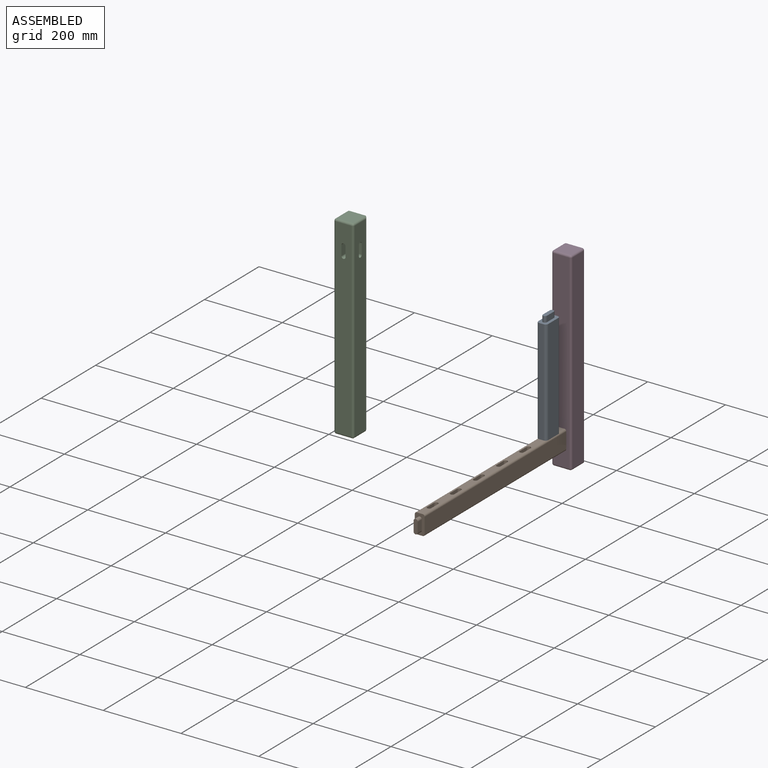
[diagram: assembled view]
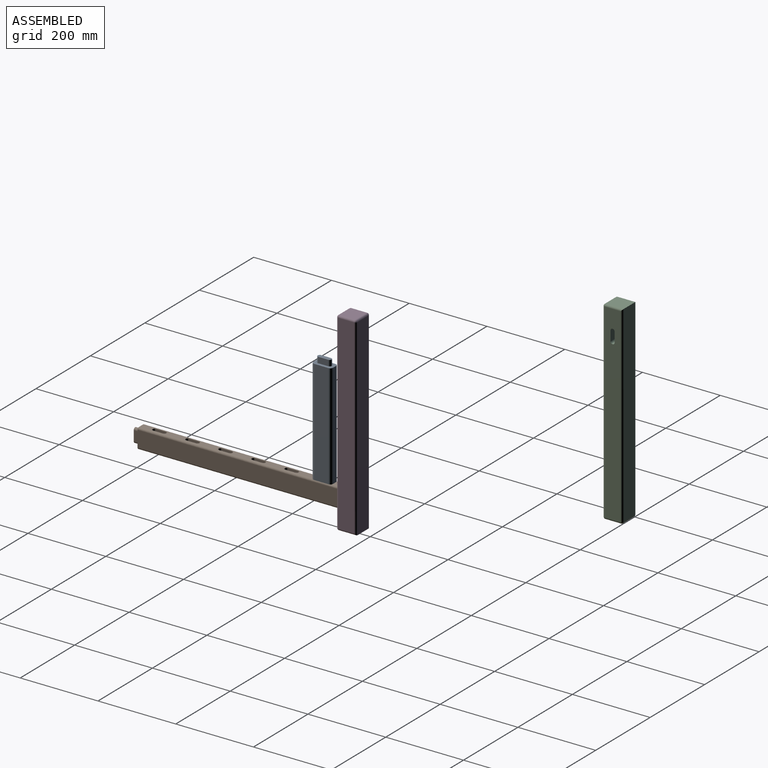
[diagram: assembled view, second angle]
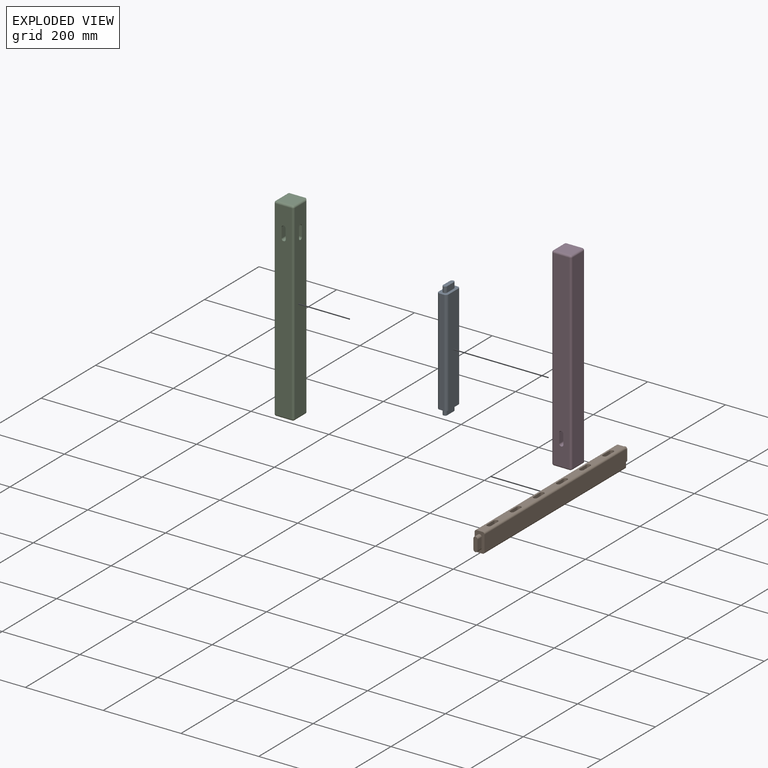
[diagram: exploded view]
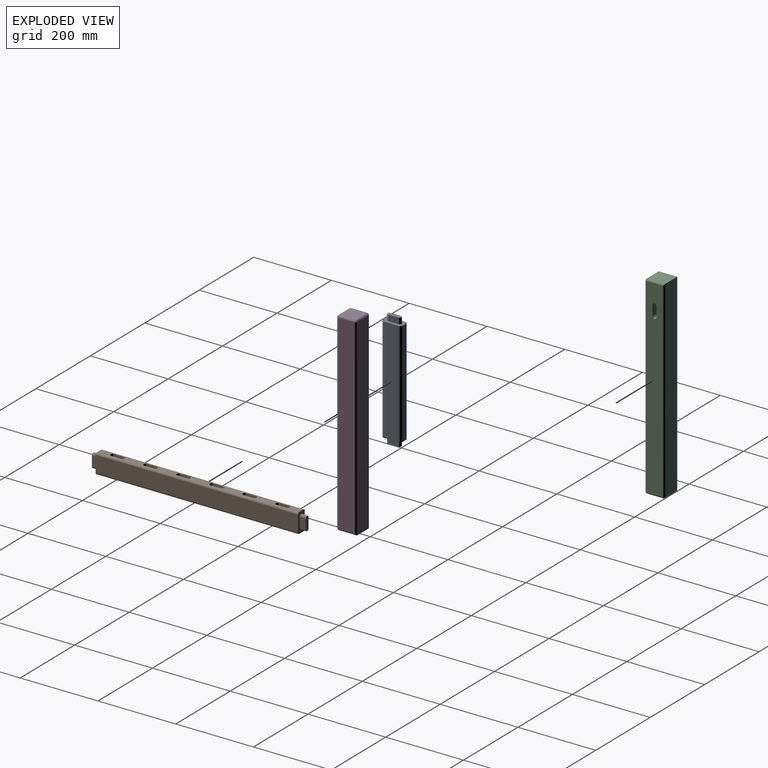
[diagram: exploded view, second angle]
ASSEMBLY  parts=4 mates=6
PART A: 20 faces, bbox 50.8x25.4x300 mm
  f0: plane 270x11.4mm, normal (-1,0,0), area 3078mm2, adj f4,f7,f12,f18
  f1: plane 270x36.8mm, normal (0,-1,0), area 9936mm2, adj f4,f5,f12,f18
  f2: plane 270x11.4mm, normal (1,0,0), area 3078mm2, adj f5,f6,f12,f18
  f3: plane 270x36.8mm, normal (0,1,0), area 9936mm2, adj f6,f7,f12,f18
  f4: cylinder r=7mm len=270mm, axis (0,0,-1), area 2968.8mm2, adj f0,f1,f12,f18
  f5: cylinder r=7mm len=270mm, axis (0,0,-1), area 2968.8mm2, adj f1,f2,f12,f18
  f6: cylinder r=7mm len=270mm, axis (0,0,-1), area 2968.8mm2, adj f2,f3,f12,f18
  f7: cylinder r=7mm len=270mm, axis (0,0,-1), area 2968.8mm2, adj f0,f3,f12,f18
  f8: cylinder r=5.3mm len=15mm, axis (0,0,1), area 249.8mm2, adj f9,f11,f12,f13
  f9: plane 25.4x15mm, normal (0,1,0), area 381mm2, adj f8,f10,f12,f13
  f10: cylinder r=5.3mm len=15mm, axis (0,0,1), area 249.8mm2, adj f9,f11,f12,f13
  f11: plane 25.4x15mm, normal (0,-1,0), area 381mm2, adj f8,f10,f12,f13
  f12: plane 50.8x25.4mm, normal (0,0,1), area 890.8mm2, adj f0,f1,f2,f3,f4,f5,f6,f7
  f13: plane 36x10.6mm, normal (0,0,1), area 357.5mm2, adj f8,f9,f10,f11
  f14: cylinder r=5.3mm len=15mm, axis (0,0,-1), area 249.8mm2, adj f15,f17,f18,f19
  f15: plane 25.4x15mm, normal (0,1,0), area 381mm2, adj f14,f16,f18,f19
  f16: cylinder r=5.3mm len=15mm, axis (0,0,-1), area 249.8mm2, adj f15,f17,f18,f19
  f17: plane 25.4x15mm, normal (0,-1,0), area 381mm2, adj f14,f16,f18,f19
  f18: plane 50.8x25.4mm, normal (0,0,-1), area 890.8mm2, adj f0,f1,f2,f3,f4,f5,f6,f7
  f19: plane 36x10.6mm, normal (0,0,-1), area 357.5mm2, adj f14,f15,f16,f17
PART B: 50 faces, bbox 50.8x25.4x550 mm
  f0: plane 520x15.4mm, normal (-1,0,0), area 5863.1mm2, adj f4,f7,f8,f9,f10,f11,f13,f14
  f1: plane 520x40.8mm, normal (0,-1,0), area 21216mm2, adj f4,f5,f42,f48
  f2: plane 520x15.4mm, normal (1,0,0), area 8008mm2, adj f5,f6,f42,f48
  f3: plane 520x40.8mm, normal (0,1,0), area 21216mm2, adj f6,f7,f42,f48
  f4: cylinder r=5mm len=520mm, axis (0,0,-1), area 4084.1mm2, adj f0,f1,f42,f48
  f5: cylinder r=5mm len=520mm, axis (0,0,-1), area 4084.1mm2, adj f1,f2,f42,f48
  f6: cylinder r=5mm len=520mm, axis (0,0,-1), area 4084.1mm2, adj f2,f3,f42,f48
  f7: cylinder r=5mm len=520mm, axis (0,0,-1), area 4084.1mm2, adj f0,f3,f42,f48
  f8: cylinder r=5.3mm len=15mm, axis (-1,0,0), area 249.8mm2, adj f0,f9,f11,f12
  f9: plane 25.4x15mm, normal (0,-1,0), area 381mm2, adj f0,f8,f10,f12
  f10: cylinder r=5.3mm len=15mm, axis (-1,0,0), area 249.8mm2, adj f0,f9,f11,f12
  f11: plane 25.4x15mm, normal (0,1,0), area 381mm2, adj f0,f8,f10,f12
  f12: plane 36x10.6mm, normal (-1,0,0), area 357.5mm2, adj f8,f9,f10,f11
  f13: cylinder r=5.3mm len=15mm, axis (-1,0,0), area 249.8mm2, adj f0,f14,f16,f17
  f14: plane 25.4x15mm, normal (0,-1,0), area 381mm2, adj f0,f13,f15,f17
  f15: cylinder r=5.3mm len=15mm, axis (-1,0,0), area 249.8mm2, adj f0,f14,f16,f17
  f16: plane 25.4x15mm, normal (0,1,0), area 381mm2, adj f0,f13,f15,f17
  f17: plane 36x10.6mm, normal (-1,0,0), area 357.5mm2, adj f13,f14,f15,f16
  f18: cylinder r=5.3mm len=15mm, axis (-1,0,0), area 249.8mm2, adj f0,f19,f21,f22
  f19: plane 25.4x15mm, normal (0,-1,0), area 381mm2, adj f0,f18,f20,f22
  f20: cylinder r=5.3mm len=15mm, axis (-1,0,0), area 249.8mm2, adj f0,f19,f21,f22
  f21: plane 25.4x15mm, normal (0,1,0), area 381mm2, adj f0,f18,f20,f22
  f22: plane 36x10.6mm, normal (-1,0,0), area 357.5mm2, adj f18,f19,f20,f21
  f23: cylinder r=5.3mm len=15mm, axis (-1,0,0), area 249.8mm2, adj f0,f24,f26,f27
  f24: plane 25.4x15mm, normal (0,-1,0), area 381mm2, adj f0,f23,f25,f27
  f25: cylinder r=5.3mm len=15mm, axis (-1,0,0), area 249.8mm2, adj f0,f24,f26,f27
  f26: plane 25.4x15mm, normal (0,1,0), area 381mm2, adj f0,f23,f25,f27
  f27: plane 36x10.6mm, normal (-1,0,0), area 357.5mm2, adj f23,f24,f25,f26
  f28: cylinder r=5.3mm len=15mm, axis (-1,0,0), area 249.8mm2, adj f0,f29,f31,f32
  f29: plane 25.4x15mm, normal (0,-1,0), area 381mm2, adj f0,f28,f30,f32
  f30: cylinder r=5.3mm len=15mm, axis (-1,0,0), area 249.8mm2, adj f0,f29,f31,f32
  f31: plane 25.4x15mm, normal (0,1,0), area 381mm2, adj f0,f28,f30,f32
  f32: plane 36x10.6mm, normal (-1,0,0), area 357.5mm2, adj f28,f29,f30,f31
  f33: cylinder r=5.3mm len=15mm, axis (-1,0,0), area 249.8mm2, adj f0,f34,f36,f37
  f34: plane 25.4x15mm, normal (0,-1,0), area 381mm2, adj f0,f33,f35,f37
  f35: cylinder r=5.3mm len=15mm, axis (-1,0,0), area 249.8mm2, adj f0,f34,f36,f37
  f36: plane 25.4x15mm, normal (0,1,0), area 381mm2, adj f0,f33,f35,f37
  f37: plane 36x10.6mm, normal (-1,0,0), area 357.5mm2, adj f33,f34,f35,f36
  f38: plane 25.4x15mm, normal (0,-1,0), area 381mm2, adj f39,f41,f42,f43
  f39: cylinder r=5.3mm len=15mm, axis (0,0,1), area 249.8mm2, adj f38,f40,f42,f43
  f40: plane 25.4x15mm, normal (0,1,0), area 381mm2, adj f39,f41,f42,f43
  f41: cylinder r=5.3mm len=15mm, axis (0,0,1), area 249.8mm2, adj f38,f40,f42,f43
  f42: plane 50.8x25.4mm, normal (0,0,1), area 911.4mm2, adj f0,f1,f2,f3,f4,f5,f6,f7
  f43: plane 36x10.6mm, normal (0,0,1), area 357.5mm2, adj f38,f39,f40,f41
  f44: cylinder r=5.3mm len=15mm, axis (0,0,-1), area 249.8mm2, adj f45,f47,f48,f49
  f45: plane 25.4x15mm, normal (0,-1,0), area 381mm2, adj f44,f46,f48,f49
  f46: cylinder r=5.3mm len=15mm, axis (0,0,-1), area 249.8mm2, adj f45,f47,f48,f49
  f47: plane 25.4x15mm, normal (0,1,0), area 381mm2, adj f44,f46,f48,f49
  f48: plane 50.8x25.4mm, normal (0,0,-1), area 911.4mm2, adj f0,f1,f2,f3,f4,f5,f6,f7
  f49: plane 36x10.6mm, normal (0,0,-1), area 357.5mm2, adj f44,f45,f46,f47
PART C: 33 faces, bbox 50.8x50.8x500 mm
  f0: plane 490x40.8mm, normal (0,-1,0), area 19634.5mm2, adj f11,f16,f19,f22,f28,f29,f30,f31
  f1: plane 490x40.8mm, normal (1,0,0), area 19634.5mm2, adj f13,f17,f18,f22,f23,f24,f25,f26
  f2: plane 495x40.8mm, normal (0,1,0), area 20196mm2, adj f4,f6,f9,f13
  f3: plane 490x40.8mm, normal (-1,0,0), area 19992mm2, adj f6,f8,f10,f11
  f4: plane 45.8x40.8mm, normal (0,0,1), area 1868.6mm2, adj f2,f8,f16,f17
  f5: plane 40.8x40.8mm, normal (0,0,-1), area 1664.6mm2, adj f9,f10,f18,f19
  f6: cylinder r=5mm len=495mm, axis (0,0,1), area 3873.5mm2, adj f2,f3,f7,f8
  f7: sphere r=5mm, area 39.3mm2, adj f6,f9,f10
  f8: cylinder r=5mm len=45.8mm, axis (0,1,0), area 345.4mm2, adj f3,f4,f6,f12
  f9: cylinder r=5mm len=40.8mm, axis (-1,0,0), area 320.4mm2, adj f2,f5,f7,f14
  f10: cylinder r=5mm len=40.8mm, axis (0,-1,0), area 320.4mm2, adj f3,f5,f7,f15
  f11: cylinder r=5mm len=490mm, axis (0,0,-1), area 3848.5mm2, adj f0,f3,f12,f15
  f12: sphere r=5mm, area 39.3mm2, adj f8,f11,f16
  f13: cylinder r=5mm len=495mm, axis (0,0,-1), area 3873.5mm2, adj f1,f2,f14,f17
  f14: sphere r=5mm, area 39.3mm2, adj f9,f13,f18
  f15: sphere r=5mm, area 39.3mm2, adj f10,f11,f19
  f16: cylinder r=5mm len=40.8mm, axis (-1,0,0), area 320.4mm2, adj f0,f4,f12,f20
  f17: cylinder r=5mm len=45.8mm, axis (0,-1,0), area 345.4mm2, adj f1,f4,f13,f20
  f18: cylinder r=5mm len=40.8mm, axis (0,1,0), area 320.4mm2, adj f1,f5,f14,f21
  f19: cylinder r=5mm len=40.8mm, axis (1,0,0), area 320.4mm2, adj f0,f5,f15,f21
  f20: sphere r=5mm, area 39.3mm2, adj f16,f17,f22
  f21: sphere r=5mm, area 39.3mm2, adj f18,f19,f22
  f22: cylinder r=5mm len=490mm, axis (0,0,1), area 3848.5mm2, adj f0,f1,f20,f21
  f23: cylinder r=5.3mm len=15mm, axis (1,0,0), area 249.8mm2, adj f1,f24,f26,f27
  f24: plane 25.4x15mm, normal (0,1,0), area 381mm2, adj f1,f23,f25,f27
  f25: cylinder r=5.3mm len=15mm, axis (1,0,0), area 249.8mm2, adj f1,f24,f26,f27
  f26: plane 25.4x15mm, normal (0,-1,0), area 381mm2, adj f1,f23,f25,f27
  f27: plane 36x10.6mm, normal (1,0,0), area 357.5mm2, adj f23,f24,f25,f26
  f28: cylinder r=5.3mm len=15mm, axis (0,-1,0), area 249.8mm2, adj f0,f29,f31,f32
  f29: plane 25.4x15mm, normal (1,0,0), area 381mm2, adj f0,f28,f30,f32
  f30: cylinder r=5.3mm len=15mm, axis (0,-1,0), area 249.8mm2, adj f0,f29,f31,f32
  f31: plane 25.4x15mm, normal (-1,0,0), area 381mm2, adj f0,f28,f30,f32
  f32: plane 36x10.6mm, normal (0,-1,0), area 357.5mm2, adj f28,f29,f30,f31
PART D: same geometry as C
PLACE A rot(axis=(0,0,1),90deg) t=(166.06,-244.13,257.46)mm
PLACE B rot(axis=(-0.58,0.58,0.58),120deg) t=(166.06,-757.03,221.66)mm
PLACE C t=(-519.08,-25.4,-9.66)mm
PLACE D rot(axis=(0,-1,0),180deg) t=(127.96,-222.03,678.16)mm
MATE cylindrical A.f10 <-> B.f33  axis (0,0,-1) through (153.36,-256.83,257.46)mm
MATE cylindrical B.f41 <-> D.f28  axis (0,1,0) through (153.36,-207.03,234.36)mm
MATE planar A.f19 <-> B.f37  axis (0,0,-1) through (153.36,-269.53,257.46)mm
MATE planar B.f36 <-> A.f17  axis (-1,0,0) through (158.66,-269.53,272.46)mm
MATE planar B.f38 <-> D.f29  axis (1,0,0) through (158.66,-214.53,247.06)mm
MATE planar B.f43 <-> D.f32  axis (0,1,0) through (153.36,-207.03,247.06)mm
